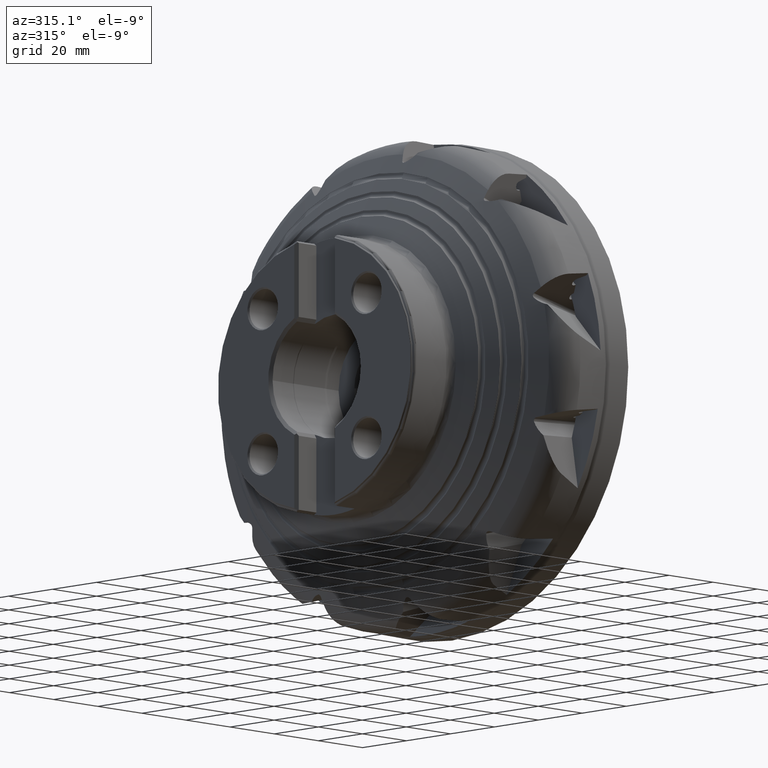
[diagram: clean part render]
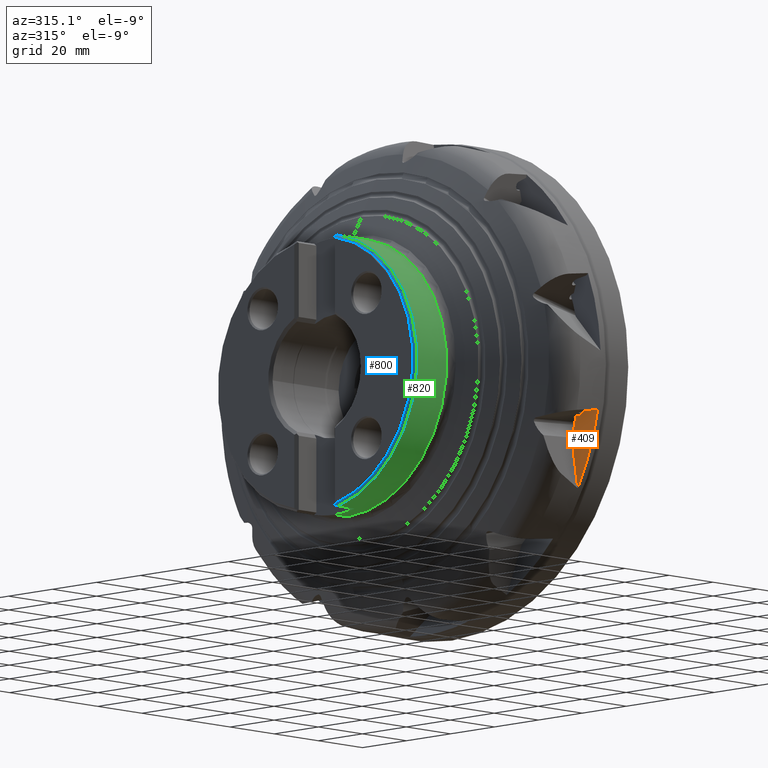
[diagram: same view with three faces highlighted in distinct colors, each labeled with its STEP entity id]
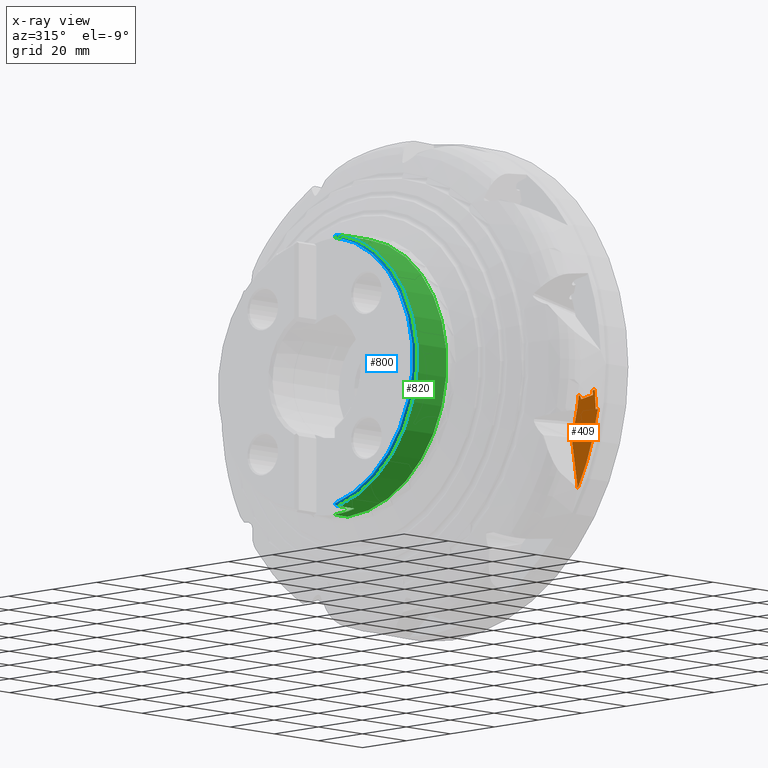
[diagram: x-ray of the same camera — body ghosted, the three highlighted faces saturated]
A machine part, auxiliary view with three faces highlighted in distinct colors.
The next image is the same camera in x-ray (body ghosted, the three faces saturated) — at least one of them is partly hidden behind the body in this view.
Their STEP definitions:

[orange] entity #409 — the highlighted conical surface has half-angle 87.309 deg.
#62 = ORIENTED_EDGE ( 'NONE', *, *, #1198, .T. ) ;
#66 = ORIENTED_EDGE ( 'NONE', *, *, #4740, .F. ) ;
#72 = ORIENTED_EDGE ( 'NONE', *, *, #1352, .T. ) ;
#82 = ORIENTED_EDGE ( 'NONE', *, *, #15761, .F. ) ;
#84 = ORIENTED_EDGE ( 'NONE', *, *, #15683, .F. ) ;
#86 = ORIENTED_EDGE ( 'NONE', *, *, #4731, .T. ) ;
#88 = ORIENTED_EDGE ( 'NONE', *, *, #4752, .T. ) ;
#93 = ORIENTED_EDGE ( 'NONE', *, *, #1336, .T. ) ;
#97 = ORIENTED_EDGE ( 'NONE', *, *, #1355, .T. ) ;
#100 = ORIENTED_EDGE ( 'NONE', *, *, #15829, .T. ) ;
#109 = ORIENTED_EDGE ( 'NONE', *, *, #15822, .T. ) ;
#110 = ORIENTED_EDGE ( 'NONE', *, *, #4735, .T. ) ;
#117 = VERTEX_POINT ( 'NONE', #2426 ) ;
#324 = VERTEX_POINT ( 'NONE', #2462 ) ;
#409 = ADVANCED_FACE ( 'NONE', ( #6663 ), #6666, .F. ) ;
#1198 = EDGE_CURVE ( 'NONE', #1697, #2090, #9706, .T. ) ;
#1336 = EDGE_CURVE ( 'NONE', #8808, #324, #8770, .T. ) ;
#1352 = EDGE_CURVE ( 'NONE', #14942, #1697, #8776, .T. ) ;
#1355 = EDGE_CURVE ( 'NONE', #15006, #1454, #8778, .T. ) ;
#1454 = VERTEX_POINT ( 'NONE', #11874 ) ;
#1697 = VERTEX_POINT ( 'NONE', #12116 ) ;
#1956 = VERTEX_POINT ( 'NONE', #13051 ) ;
#2090 = VERTEX_POINT ( 'NONE', #13185 ) ;
#2426 = CARTESIAN_POINT ( 'NONE',  ( -10.75802831989823900, -69.07125936177112600, -39.51381726916803000 ) ) ;
#2462 = CARTESIAN_POINT ( 'NONE',  ( -10.63052942149523800, -76.41263836694362500, -8.306215895500704600 ) ) ;
#2660 = DIRECTION ( 'NONE',  ( 0.0000000000000000000, 0.0000000000000000000, 1.000000000000000000 ) ) ;
#2661 = DIRECTION ( 'NONE',  ( -1.000000000000000000, 0.0000000000000000000, 0.0000000000000000000 ) ) ;
#2662 = CARTESIAN_POINT ( 'NONE',  ( -10.29289730476655900, 0.0000000000000000000, 0.0000000000000000000 ) ) ;
#4731 = EDGE_CURVE ( 'NONE', #1454, #14916, #12917, .T. ) ;
#4735 = EDGE_CURVE ( 'NONE', #14980, #14942, #12918, .T. ) ;
#4740 = EDGE_CURVE ( 'NONE', #15006, #324, #12919, .T. ) ;
#4752 = EDGE_CURVE ( 'NONE', #14916, #14980, #12920, .T. ) ;
#5245 = EDGE_LOOP ( 'NONE', ( #62, #109, #84, #100, #82, #93, #66, #97, #86, #88, #110, #72 ) ) ;
#5691 = AXIS2_PLACEMENT_3D ( 'NONE', #2662, #2661, #2660 ) ;
#6663 = FACE_OUTER_BOUND ( 'NONE', #5245, .T. ) ;
#6666 = CONICAL_SURFACE ( 'NONE', #5691, 69.68044409463347200, 1.523822126671621400 ) ;
#8770 = B_SPLINE_CURVE_WITH_KNOTS ( 'NONE', 3,
 ( #11366, #11373, #11374, #11375, #11376, #11377 ),
 .UNSPECIFIED., .F., .F.,
 ( 4, 2, 4 ),
 ( 0.0003015363868757472900, 0.0005420305438735409200, 0.0007825247008713345400 ),
 .UNSPECIFIED. ) ;
#8776 = B_SPLINE_CURVE_WITH_KNOTS ( 'NONE', 3,
 ( #11425, #11451, #11452, #11453, #11454, #11455, #11456, #11457, #11458, #11459 ),
 .UNSPECIFIED., .F., .F.,
 ( 4, 2, 2, 2, 4 ),
 ( 0.0002169358693915154500, 0.0003111763129204630600, 0.0004054167564494107300, 0.0005938976435073035600, 0.0009708594176230894500 ),
 .UNSPECIFIED. ) ;
#8778 = B_SPLINE_CURVE_WITH_KNOTS ( 'NONE', 3,
 ( #11460, #11470, #11471, #11472, #11473, #11474 ),
 .UNSPECIFIED., .F., .F.,
 ( 4, 2, 4 ),
 ( 0.0009496811655946274900, 0.001200127943345789300, 0.001450574721096951100 ),
 .UNSPECIFIED. ) ;
#8808 = VERTEX_POINT ( 'NONE', #18592 ) ;
#9044 = AXIS2_PLACEMENT_3D ( 'NONE', #10938, #10939, #10940 ) ;
#9706 = CIRCLE ( 'NONE', #9044, 69.68044409463347200 ) ;
#10938 = CARTESIAN_POINT ( 'NONE',  ( -10.29289730476655900, 0.0000000000000000000, 0.0000000000000000000 ) ) ;
#10939 = DIRECTION ( 'NONE',  ( 1.000000000000000000, -0.0000000000000000000, -0.0000000000000000000 ) ) ;
#10940 = DIRECTION ( 'NONE',  ( 0.0000000000000000000, 0.0000000000000000000, -1.000000000000000000 ) ) ;
#11366 = CARTESIAN_POINT ( 'NONE',  ( -10.64792904497914200, -76.75647342657669000, -8.565313938448541700 ) ) ;
#11373 = CARTESIAN_POINT ( 'NONE',  ( -10.64723735857230800, -76.75059454110778700, -8.485321417554141400 ) ) ;
#11374 = CARTESIAN_POINT ( 'NONE',  ( -10.64483407005646900, -76.70763753019738800, -8.408052233293824800 ) ) ;
#11375 = CARTESIAN_POINT ( 'NONE',  ( -10.63823890161527600, -76.57684963192029700, -8.313256940432186300 ) ) ;
#11376 = CARTESIAN_POINT ( 'NONE',  ( -10.63419251786196200, -76.49220811447168000, -8.295295601523861300 ) ) ;
#11377 = CARTESIAN_POINT ( 'NONE',  ( -10.63052942149523800, -76.41263836694362500, -8.306215895500704600 ) ) ;
#11425 = CARTESIAN_POINT ( 'NONE',  ( -10.32606547270047400, -69.73804692134641000, -9.528711191294856800 ) ) ;
#11451 = CARTESIAN_POINT ( 'NONE',  ( -10.32528452626933600, -69.72522138700726700, -9.499863685735187200 ) ) ;
#11452 = CARTESIAN_POINT ( 'NONE',  ( -10.32415090512788100, -69.70422332950737100, -9.475303824573519100 ) ) ;
#11453 = CARTESIAN_POINT ( 'NONE',  ( -10.32167835903589300, -69.65671188991866800, -9.434267846502130800 ) ) ;
#11454 = CARTESIAN_POINT ( 'NONE',  ( -10.32034183186410400, -69.63027333135217100, -9.417618480867219000 ) ) ;
#11455 = CARTESIAN_POINT ( 'NONE',  ( -10.31615695925746000, -69.54627759593627400, -9.374419007147203300 ) ) ;
#11456 = CARTESIAN_POINT ( 'NONE',  ( -10.31327684635283700, -69.48696251446052900, -9.355795461650167500 ) ) ;
#11457 = CARTESIAN_POINT ( 'NONE',  ( -10.30450887418696500, -69.30423034094255300, -9.315170315971332800 ) ) ;
#11458 = CARTESIAN_POINT ( 'NONE',  ( -10.29864780283493000, -69.17919157171533600, -9.309518984009843100 ) ) ;
#11459 = CARTESIAN_POINT ( 'NONE',  ( -10.29289730476505400, -69.05448825932691600, -9.318902320966945000 ) ) ;
#11460 = CARTESIAN_POINT ( 'NONE',  ( -10.61079614642675200, -75.98391889477861100, -8.365054600071058400 ) ) ;
#11470 = CARTESIAN_POINT ( 'NONE',  ( -10.60694462932632300, -75.90022752119702400, -8.376540741295032800 ) ) ;
#11471 = CARTESIAN_POINT ( 'NONE',  ( -10.60351482643880600, -75.82222440104182200, -8.418322728517754400 ) ) ;
#11472 = CARTESIAN_POINT ( 'NONE',  ( -10.59895248568302900, -75.71045540026203500, -8.544370344488168500 ) ) ;
#11473 = CARTESIAN_POINT ( 'NONE',  ( -10.59790779662370500, -75.67851847831016700, -8.628862146056610200 ) ) ;
#11474 = CARTESIAN_POINT ( 'NONE',  ( -10.59864349608673000, -75.68465328155885200, -8.712420550059365000 ) ) ;
#11874 = CARTESIAN_POINT ( 'NONE',  ( -10.59864349608673000, -75.68465328155885200, -8.712420550059365000 ) ) ;
#12116 = CARTESIAN_POINT ( 'NONE',  ( -10.29289730476505400, -69.05448825932691600, -9.318902320966945000 ) ) ;
#12917 = B_SPLINE_CURVE_WITH_KNOTS ( 'NONE', 3,
 ( #17499, #17503, #17504, #17505 ),
 .UNSPECIFIED., .F., .F.,
 ( 4, 4 ),
 ( 0.001113490693624574400, 0.002329847205042276900 ),
 .UNSPECIFIED. ) ;
#12918 = B_SPLINE_CURVE_WITH_KNOTS ( 'NONE', 3,
 ( #17506, #17513, #17514, #17515 ),
 .UNSPECIFIED., .F., .F.,
 ( 4, 4 ),
 ( 0.0002372482808268562800, 0.001501763816076202000 ),
 .UNSPECIFIED. ) ;
#12919 = B_SPLINE_CURVE_WITH_KNOTS ( 'NONE', 3,
 ( #17509, #17525, #17526, #17527 ),
 .UNSPECIFIED., .F., .F.,
 ( 4, 4 ),
 ( 0.007005674156082834100, 0.007438862082628606300 ),
 .UNSPECIFIED. ) ;
#12920 = B_SPLINE_CURVE_WITH_KNOTS ( 'NONE', 3,
 ( #17550, #17552, #17553, #17554 ),
 .UNSPECIFIED., .F., .F.,
 ( 4, 4 ),
 ( 0.002525848611171542400, 0.008104634272234725500 ),
 .UNSPECIFIED. ) ;
#13051 = CARTESIAN_POINT ( 'NONE',  ( -10.75802831989757500, -78.20583840259821800, -14.69787279665655100 ) ) ;
#13185 = CARTESIAN_POINT ( 'NONE',  ( -10.29289730476655000, -65.88301941712697400, -22.68902910456530400 ) ) ;
#14371 = B_SPLINE_CURVE_WITH_KNOTS ( 'NONE', 3,
 ( #19834, #19851, #19852, #19853 ),
 .UNSPECIFIED., .F., .F.,
 ( 4, 4 ),
 ( 0.0001527847357731330300, 0.006438758239299777200 ),
 .UNSPECIFIED. ) ;
#14399 = B_SPLINE_CURVE_WITH_KNOTS ( 'NONE', 3,
 ( #20092, #20097, #20098, #20099 ),
 .UNSPECIFIED., .F., .F.,
 ( 4, 4 ),
 ( 8.596981840204971200E-006, 0.01713911704369134100 ),
 .UNSPECIFIED. ) ;
#14403 = B_SPLINE_CURVE_WITH_KNOTS ( 'NONE', 3,
 ( #20112, #20132, #20133, #20134 ),
 .UNSPECIFIED., .F., .F.,
 ( 4, 4 ),
 ( 4.489934179081464700E-006, 0.001008673293771071600 ),
 .UNSPECIFIED. ) ;
#14916 = VERTEX_POINT ( 'NONE', #18688 ) ;
#14942 = VERTEX_POINT ( 'NONE', #18714 ) ;
#14980 = VERTEX_POINT ( 'NONE', #18752 ) ;
#15006 = VERTEX_POINT ( 'NONE', #18778 ) ;
#15026 = VERTEX_POINT ( 'NONE', #18798 ) ;
#15683 = EDGE_CURVE ( 'NONE', #1956, #117, #20348, .T. ) ;
#15761 = EDGE_CURVE ( 'NONE', #8808, #15026, #14371, .T. ) ;
#15822 = EDGE_CURVE ( 'NONE', #2090, #117, #14399, .T. ) ;
#15829 = EDGE_CURVE ( 'NONE', #1956, #15026, #14403, .T. ) ;
#17499 = CARTESIAN_POINT ( 'NONE',  ( -10.59864349608673000, -75.68465328155885200, -8.712420550059365000 ) ) ;
#17503 = CARTESIAN_POINT ( 'NONE',  ( -10.60220362588342100, -75.71434026238549100, -9.116768763853016800 ) ) ;
#17504 = CARTESIAN_POINT ( 'NONE',  ( -10.60590749738355500, -75.74396045769673000, -9.521120645924245500 ) ) ;
#17505 = CARTESIAN_POINT ( 'NONE',  ( -10.60975380442045000, -75.77351446018833800, -9.925475980020124200 ) ) ;
#17506 = CARTESIAN_POINT ( 'NONE',  ( -10.35774486101638600, -70.25222065240041000, -10.68353643042854600 ) ) ;
#17509 = CARTESIAN_POINT ( 'NONE',  ( -10.61079614642675200, -75.98391889477861100, -8.365054600071058400 ) ) ;
#17513 = CARTESIAN_POINT ( 'NONE',  ( -10.34705019218552600, -70.08062669864227700, -10.29868872691159100 ) ) ;
#17514 = CARTESIAN_POINT ( 'NONE',  ( -10.33648900696329600, -69.90923330659653300, -9.913747796370918400 ) ) ;
#17515 = CARTESIAN_POINT ( 'NONE',  ( -10.32606547270047400, -69.73804692134641000, -9.528711191294856800 ) ) ;
#17525 = CARTESIAN_POINT ( 'NONE',  ( -10.61737277293770300, -76.12682541495571800, -8.345441533606326300 ) ) ;
#17526 = CARTESIAN_POINT ( 'NONE',  ( -10.62395053748644500, -76.26973190552513400, -8.325828632984025600 ) ) ;
#17527 = CARTESIAN_POINT ( 'NONE',  ( -10.63052942149523800, -76.41263836694362500, -8.306215895500704600 ) ) ;
#17550 = CARTESIAN_POINT ( 'NONE',  ( -10.60975380442045000, -75.77351446018833800, -9.925475980020124200 ) ) ;
#17552 = CARTESIAN_POINT ( 'NONE',  ( -10.52551302664536700, -73.93308930403418300, -10.17812815408543900 ) ) ;
#17553 = CARTESIAN_POINT ( 'NONE',  ( -10.44149206740092800, -72.09265846257108000, -10.43081235673920300 ) ) ;
#17554 = CARTESIAN_POINT ( 'NONE',  ( -10.35774486101638600, -70.25222065240041000, -10.68353643042854600 ) ) ;
#18592 = CARTESIAN_POINT ( 'NONE',  ( -10.64792904497914200, -76.75647342657669000, -8.565313938448541700 ) ) ;
#18688 = CARTESIAN_POINT ( 'NONE',  ( -10.60975380442045000, -75.77351446018833800, -9.925475980020124200 ) ) ;
#18714 = CARTESIAN_POINT ( 'NONE',  ( -10.32606547270047400, -69.73804692134641000, -9.528711191294856800 ) ) ;
#18752 = CARTESIAN_POINT ( 'NONE',  ( -10.35774486101638600, -70.25222065240041000, -10.68353643042854600 ) ) ;
#18778 = CARTESIAN_POINT ( 'NONE',  ( -10.61079614642675200, -75.98391889477861100, -8.365054600071058400 ) ) ;
#18798 = CARTESIAN_POINT ( 'NONE',  ( -10.71332821678767600, -77.21198679853361600, -14.83442029378989300 ) ) ;
#19486 = AXIS2_PLACEMENT_3D ( 'NONE', #19579, #19580, #19581 ) ;
#19579 = CARTESIAN_POINT ( 'NONE',  ( -10.75802831989757300, 0.0000000000000000000, 0.0000000000000000000 ) ) ;
#19580 = DIRECTION ( 'NONE',  ( 1.000000000000000000, -0.0000000000000000000, -0.0000000000000000000 ) ) ;
#19581 = DIRECTION ( 'NONE',  ( 0.0000000000000000000, 0.0000000000000000000, -1.000000000000000000 ) ) ;
#19834 = CARTESIAN_POINT ( 'NONE',  ( -10.64792904497914200, -76.75647342657669000, -8.565313938448541700 ) ) ;
#19851 = CARTESIAN_POINT ( 'NONE',  ( -10.66599771904970800, -76.91004542739291600, -10.65492965711832900 ) ) ;
#19852 = CARTESIAN_POINT ( 'NONE',  ( -10.68786223345540500, -77.06185310311917600, -12.74463327591584000 ) ) ;
#19853 = CARTESIAN_POINT ( 'NONE',  ( -10.71332821678767600, -77.21198679853361600, -14.83442029378989300 ) ) ;
#20092 = CARTESIAN_POINT ( 'NONE',  ( -10.29289730476655000, -65.88301941712697400, -22.68902910456530400 ) ) ;
#20097 = CARTESIAN_POINT ( 'NONE',  ( -10.42575127797481800, -66.94009298246408000, -28.29898028723830400 ) ) ;
#20098 = CARTESIAN_POINT ( 'NONE',  ( -10.58358431388401000, -68.00355276764514700, -33.90703076014506900 ) ) ;
#20099 = CARTESIAN_POINT ( 'NONE',  ( -10.75802831989823900, -69.07125936177112600, -39.51381726916803000 ) ) ;
#20112 = CARTESIAN_POINT ( 'NONE',  ( -10.75802831989757500, -78.20583840259821800, -14.69787279665655100 ) ) ;
#20132 = CARTESIAN_POINT ( 'NONE',  ( -10.74311822225751100, -77.87455478606493400, -14.74338716403183000 ) ) ;
#20133 = CARTESIAN_POINT ( 'NONE',  ( -10.72821806588145900, -77.54327092078051500, -14.78890297869291000 ) ) ;
#20134 = CARTESIAN_POINT ( 'NONE',  ( -10.71332821678767600, -77.21198679853361600, -14.83442029378989300 ) ) ;
#20348 = CIRCLE ( 'NONE', #19486, 79.57500000000000300 ) ;

[blue] entity #800 — the highlighted toroidal blend (fillet) surface has major radius 44 mm and minor (blend) radius 1 mm.
#800 = ADVANCED_FACE ( 'NONE', ( #7376 ), #7381, .T. ) ;
#1485 = VERTEX_POINT ( 'NONE', #11904 ) ;
#1487 = VERTEX_POINT ( 'NONE', #11906 ) ;
#1499 = VERTEX_POINT ( 'NONE', #11918 ) ;
#1503 = VERTEX_POINT ( 'NONE', #11922 ) ;
#1515 = VERTEX_POINT ( 'NONE', #11934 ) ;
#1516 = VERTEX_POINT ( 'NONE', #11935 ) ;
#4254 = EDGE_CURVE ( 'NONE', #1503, #1516, #12741, .T. ) ;
#4260 = EDGE_CURVE ( 'NONE', #1485, #1499, #12743, .T. ) ;
#4261 = EDGE_CURVE ( 'NONE', #1503, #1487, #12744, .T. ) ;
#4281 = EDGE_CURVE ( 'NONE', #1515, #1499, #12764, .T. ) ;
#4282 = EDGE_CURVE ( 'NONE', #1485, #1487, #12404, .T. ) ;
#4283 = EDGE_CURVE ( 'NONE', #1515, #1516, #12405, .T. ) ;
#5354 = ORIENTED_EDGE ( 'NONE', *, *, #4282, .F. ) ;
#5355 = ORIENTED_EDGE ( 'NONE', *, *, #4260, .T. ) ;
#5356 = ORIENTED_EDGE ( 'NONE', *, *, #4281, .F. ) ;
#5357 = ORIENTED_EDGE ( 'NONE', *, *, #4283, .T. ) ;
#5358 = ORIENTED_EDGE ( 'NONE', *, *, #4254, .F. ) ;
#5359 = ORIENTED_EDGE ( 'NONE', *, *, #4261, .T. ) ;
#7376 = FACE_OUTER_BOUND ( 'NONE', #16038, .T. ) ;
#7381 = TOROIDAL_SURFACE ( 'NONE', #8836, 43.99999999999998600, 1.000000000000004400 ) ;
#8578 = DIRECTION ( 'NONE',  ( 1.000000000000000000, -0.0000000000000000000, -0.0000000000000000000 ) ) ;
#8579 = CARTESIAN_POINT ( 'NONE',  ( -59.75000000000001400, 0.0000000000000000000, 0.0000000000000000000 ) ) ;
#8581 = DIRECTION ( 'NONE',  ( 0.0000000000000000000, 0.0000000000000000000, -1.000000000000000000 ) ) ;
#8836 = AXIS2_PLACEMENT_3D ( 'NONE', #8579, #8578, #8581 ) ;
#9144 = AXIS2_PLACEMENT_3D ( 'NONE', #13472, #13483, #13484 ) ;
#9145 = AXIS2_PLACEMENT_3D ( 'NONE', #13476, #13480, #13481 ) ;
#11904 = CARTESIAN_POINT ( 'NONE',  ( -59.75000000000001400, -9.170586121755638600, 44.05565060447368400 ) ) ;
#11906 = CARTESIAN_POINT ( 'NONE',  ( -59.75000000000001400, -9.170586121755633300, -44.05565060447368400 ) ) ;
#11918 = CARTESIAN_POINT ( 'NONE',  ( -60.62628637090364200, -8.576286370903625700, 43.64718786304215600 ) ) ;
#11922 = CARTESIAN_POINT ( 'NONE',  ( -60.62628637090364200, -8.576286370903625700, -43.64718786304216300 ) ) ;
#11934 = CARTESIAN_POINT ( 'NONE',  ( -60.72900000000000600, -8.678999999999986100, 43.34346801618168900 ) ) ;
#11935 = CARTESIAN_POINT ( 'NONE',  ( -60.72900000000000600, -8.678999999999986100, -43.34346801618168900 ) ) ;
#12404 = CIRCLE ( 'NONE', #9145, 44.99999999999999300 ) ;
#12405 = CIRCLE ( 'NONE', #9144, 44.20386024624732400 ) ;
#12741 = B_SPLINE_CURVE_WITH_KNOTS ( 'NONE', 3,
 ( #13362, #13367, #13368, #13369 ),
 .UNSPECIFIED., .F., .F.,
 ( 4, 4 ),
 ( 0.0007089213754981982300, 0.001043754520033241800 ),
 .UNSPECIFIED. ) ;
#12743 = B_SPLINE_CURVE_WITH_KNOTS ( 'NONE', 3,
 ( #13382, #13386, #13387, #13388, #13389, #13390 ),
 .UNSPECIFIED., .F., .F.,
 ( 4, 2, 4 ),
 ( 0.0000000000000000000, 0.0005991824275628132500, 0.001198364855125626500 ),
 .UNSPECIFIED. ) ;
#12744 = B_SPLINE_CURVE_WITH_KNOTS ( 'NONE', 3,
 ( #13370, #13392, #13393, #13394, #13395, #13396, #13397, #13398 ),
 .UNSPECIFIED., .F., .F.,
 ( 4, 2, 2, 4 ),
 ( 0.0000000000000000000, 0.0002984446912743178200, 0.0005968893825486356400, 0.001193778765097250900 ),
 .UNSPECIFIED. ) ;
#12764 = B_SPLINE_CURVE_WITH_KNOTS ( 'NONE', 3,
 ( #13468, #13477, #13478, #13479 ),
 .UNSPECIFIED., .F., .F.,
 ( 4, 4 ),
 ( 1.041411319688869400E-006, 0.0003376796849085577300 ),
 .UNSPECIFIED. ) ;
#13362 = CARTESIAN_POINT ( 'NONE',  ( -60.62628637090364200, -8.576286370903625700, -43.64718786304216300 ) ) ;
#13367 = CARTESIAN_POINT ( 'NONE',  ( -60.67120764613733300, -8.621207646137319700, -43.55509559603947200 ) ) ;
#13368 = CARTESIAN_POINT ( 'NONE',  ( -60.70756039933768700, -8.657560399337674200, -43.45276443850500700 ) ) ;
#13369 = CARTESIAN_POINT ( 'NONE',  ( -60.72900000000000600, -8.678999999999986100, -43.34346801618168900 ) ) ;
#13370 = CARTESIAN_POINT ( 'NONE',  ( -60.62628637090364200, -8.576286370903625700, -43.64718786304216300 ) ) ;
#13382 = CARTESIAN_POINT ( 'NONE',  ( -59.75000000000001400, -9.170586121755638600, 44.05565060447368400 ) ) ;
#13386 = CARTESIAN_POINT ( 'NONE',  ( -59.95317343704850500, -9.170586121755635000, 44.05565060447368400 ) ) ;
#13387 = CARTESIAN_POINT ( 'NONE',  ( -60.14621132977282500, -9.096745948872436900, 44.00490018871058600 ) ) ;
#13388 = CARTESIAN_POINT ( 'NONE',  ( -60.44426874741295600, -8.874872597005818900, 43.85240643884088700 ) ) ;
#13389 = CARTESIAN_POINT ( 'NONE',  ( -60.55244004992975700, -8.731165356559603900, 43.75363632609549600 ) ) ;
#13390 = CARTESIAN_POINT ( 'NONE',  ( -60.62628637090364200, -8.576286370903625700, 43.64718786304215600 ) ) ;
#13392 = CARTESIAN_POINT ( 'NONE',  ( -60.58932967858031300, -8.653796190550002300, -43.70046043025296000 ) ) ;
#13393 = CARTESIAN_POINT ( 'NONE',  ( -60.54433064521211300, -8.727233846006846800, -43.75093419543491500 ) ) ;
#13394 = CARTESIAN_POINT ( 'NONE',  ( -60.43558608498955900, -8.864617045229723000, -43.84535778908570300 ) ) ;
#13395 = CARTESIAN_POINT ( 'NONE',  ( -60.37065711703066700, -8.929543678886894000, -43.88998192149953300 ) ) ;
#13396 = CARTESIAN_POINT ( 'NONE',  ( -60.14696950763738000, -9.096429962436728200, -44.00468301095539700 ) ) ;
#13397 = CARTESIAN_POINT ( 'NONE',  ( -59.95392834671768900, -9.170586121755631500, -44.05565060447366200 ) ) ;
#13398 = CARTESIAN_POINT ( 'NONE',  ( -59.75000000000001400, -9.170586121755633300, -44.05565060447368400 ) ) ;
#13468 = CARTESIAN_POINT ( 'NONE',  ( -60.72900000000000600, -8.678999999999986100, 43.34346801618168900 ) ) ;
#13472 = CARTESIAN_POINT ( 'NONE',  ( -60.72900000000000600, 0.0000000000000000000, 0.0000000000000000000 ) ) ;
#13476 = CARTESIAN_POINT ( 'NONE',  ( -59.75000000000001400, 0.0000000000000000000, 0.0000000000000000000 ) ) ;
#13477 = CARTESIAN_POINT ( 'NONE',  ( -60.70740487923371400, -8.657404879233697100, 43.45355726068635200 ) ) ;
#13478 = CARTESIAN_POINT ( 'NONE',  ( -60.67181485304538300, -8.621814853045368200, 43.55385077250291200 ) ) ;
#13479 = CARTESIAN_POINT ( 'NONE',  ( -60.62628637090364200, -8.576286370903625700, 43.64718786304215600 ) ) ;
#13480 = DIRECTION ( 'NONE',  ( 1.000000000000000000, -0.0000000000000000000, -0.0000000000000000000 ) ) ;
#13481 = DIRECTION ( 'NONE',  ( 0.0000000000000000000, 0.0000000000000000000, -1.000000000000000000 ) ) ;
#13483 = DIRECTION ( 'NONE',  ( 1.000000000000000000, -0.0000000000000000000, -0.0000000000000000000 ) ) ;
#13484 = DIRECTION ( 'NONE',  ( 0.0000000000000000000, 0.0000000000000000000, -1.000000000000000000 ) ) ;
#16038 = EDGE_LOOP ( 'NONE', ( #5354, #5355, #5356, #5357, #5358, #5359 ) ) ;

[green] entity #820 — the highlighted cylindrical surface (partial cylindrical patch) has radius 45 mm, axis along (1, -0, -0).
#129 = VERTEX_POINT ( 'NONE', #2438 ) ;
#820 = ADVANCED_FACE ( 'NONE', ( #7418 ), #7417, .T. ) ;
#863 = EDGE_CURVE ( 'NONE', #1651, #1893, #9319, .T. ) ;
#869 = EDGE_CURVE ( 'NONE', #1738, #1893, #9337, .T. ) ;
#878 = EDGE_CURVE ( 'NONE', #1982, #1738, #9346, .T. ) ;
#1485 = VERTEX_POINT ( 'NONE', #11904 ) ;
#1487 = VERTEX_POINT ( 'NONE', #11906 ) ;
#1651 = VERTEX_POINT ( 'NONE', #12070 ) ;
#1738 = VERTEX_POINT ( 'NONE', #12157 ) ;
#1893 = VERTEX_POINT ( 'NONE', #12988 ) ;
#1982 = VERTEX_POINT ( 'NONE', #13077 ) ;
#2163 = VERTEX_POINT ( 'NONE', #13258 ) ;
#2438 = CARTESIAN_POINT ( 'NONE',  ( -52.25000000000001400, -9.170586121755633300, -44.05565060447367600 ) ) ;
#4282 = EDGE_CURVE ( 'NONE', #1485, #1487, #12404, .T. ) ;
#4297 = EDGE_CURVE ( 'NONE', #1487, #129, #12415, .T. ) ;
#4310 = EDGE_CURVE ( 'NONE', #2163, #1982, #12425, .T. ) ;
#4311 = EDGE_CURVE ( 'NONE', #2163, #1485, #12416, .T. ) ;
#4314 = EDGE_CURVE ( 'NONE', #1651, #129, #12426, .T. ) ;
#5467 = ORIENTED_EDGE ( 'NONE', *, *, #878, .F. ) ;
#5468 = ORIENTED_EDGE ( 'NONE', *, *, #4310, .F. ) ;
#5469 = ORIENTED_EDGE ( 'NONE', *, *, #4311, .T. ) ;
#5470 = ORIENTED_EDGE ( 'NONE', *, *, #4282, .T. ) ;
#5471 = ORIENTED_EDGE ( 'NONE', *, *, #4297, .T. ) ;
#5472 = ORIENTED_EDGE ( 'NONE', *, *, #4314, .F. ) ;
#5473 = ORIENTED_EDGE ( 'NONE', *, *, #863, .T. ) ;
#5474 = ORIENTED_EDGE ( 'NONE', *, *, #869, .F. ) ;
#7417 = CYLINDRICAL_SURFACE ( 'NONE', #8862, 44.99999999999998600 ) ;
#7418 = FACE_OUTER_BOUND ( 'NONE', #16034, .T. ) ;
#8629 = DIRECTION ( 'NONE',  ( 0.0000000000000000000, 0.0000000000000000000, -1.000000000000000000 ) ) ;
#8640 = DIRECTION ( 'NONE',  ( 1.000000000000000000, -0.0000000000000000000, -0.0000000000000000000 ) ) ;
#8641 = CARTESIAN_POINT ( 'NONE',  ( 0.0000000000000000000, 0.0000000000000000000, 0.0000000000000000000 ) ) ;
#8862 = AXIS2_PLACEMENT_3D ( 'NONE', #8641, #8640, #8629 ) ;
#8909 = AXIS2_PLACEMENT_3D ( 'NONE', #9893, #9903, #9904 ) ;
#9145 = AXIS2_PLACEMENT_3D ( 'NONE', #13476, #13480, #13481 ) ;
#9158 = AXIS2_PLACEMENT_3D ( 'NONE', #13569, #13614, #13615 ) ;
#9159 = AXIS2_PLACEMENT_3D ( 'NONE', #13626, #13627, #13628 ) ;
#9319 = LINE ( 'NONE', #9879, #9327 ) ;
#9327 = VECTOR ( 'NONE', #9886, 1000.000000000000000 ) ;
#9336 = VECTOR ( 'NONE', #9928, 1000.000000000000000 ) ;
#9337 = CIRCLE ( 'NONE', #8909, 44.99999999999998600 ) ;
#9346 = LINE ( 'NONE', #9916, #9336 ) ;
#9879 = CARTESIAN_POINT ( 'NONE',  ( 0.0000000000000000000, 0.0000000000000000000, -44.99999999999998600 ) ) ;
#9886 = DIRECTION ( 'NONE',  ( 1.000000000000000000, -0.0000000000000000000, -0.0000000000000000000 ) ) ;
#9893 = CARTESIAN_POINT ( 'NONE',  ( -46.25000000000000000, 0.0000000000000000000, 0.0000000000000000000 ) ) ;
#9903 = DIRECTION ( 'NONE',  ( 1.000000000000000000, -0.0000000000000000000, -0.0000000000000000000 ) ) ;
#9904 = DIRECTION ( 'NONE',  ( 0.0000000000000000000, 0.0000000000000000000, -1.000000000000000000 ) ) ;
#9916 = CARTESIAN_POINT ( 'NONE',  ( 0.0000000000000000000, 5.510910596163087200E-015, 44.99999999999998600 ) ) ;
#9928 = DIRECTION ( 'NONE',  ( 1.000000000000000000, -0.0000000000000000000, -0.0000000000000000000 ) ) ;
#11904 = CARTESIAN_POINT ( 'NONE',  ( -59.75000000000001400, -9.170586121755638600, 44.05565060447368400 ) ) ;
#11906 = CARTESIAN_POINT ( 'NONE',  ( -59.75000000000001400, -9.170586121755633300, -44.05565060447368400 ) ) ;
#12070 = CARTESIAN_POINT ( 'NONE',  ( -52.25000000000001400, 0.0000000000000000000, -44.99999999999998600 ) ) ;
#12157 = CARTESIAN_POINT ( 'NONE',  ( -46.25000000000000000, 5.608116404033093100E-015, 44.99999999999998600 ) ) ;
#12404 = CIRCLE ( 'NONE', #9145, 44.99999999999999300 ) ;
#12410 = VECTOR ( 'NONE', #13539, 1000.000000000000000 ) ;
#12415 = LINE ( 'NONE', #13529, #12410 ) ;
#12416 = LINE ( 'NONE', #13616, #12423 ) ;
#12423 = VECTOR ( 'NONE', #13617, 1000.000000000000000 ) ;
#12425 = CIRCLE ( 'NONE', #9158, 44.99999999999998600 ) ;
#12426 = CIRCLE ( 'NONE', #9159, 44.99999999999998600 ) ;
#12988 = CARTESIAN_POINT ( 'NONE',  ( -46.25000000000000000, 0.0000000000000000000, -44.99999999999998600 ) ) ;
#13077 = CARTESIAN_POINT ( 'NONE',  ( -52.25000000000001400, 5.510910596163087200E-015, 44.99999999999998600 ) ) ;
#13258 = CARTESIAN_POINT ( 'NONE',  ( -52.25000000000001400, -9.170586121755635000, 44.05565060447367600 ) ) ;
#13476 = CARTESIAN_POINT ( 'NONE',  ( -59.75000000000001400, 0.0000000000000000000, 0.0000000000000000000 ) ) ;
#13480 = DIRECTION ( 'NONE',  ( 1.000000000000000000, -0.0000000000000000000, -0.0000000000000000000 ) ) ;
#13481 = DIRECTION ( 'NONE',  ( 0.0000000000000000000, 0.0000000000000000000, -1.000000000000000000 ) ) ;
#13529 = CARTESIAN_POINT ( 'NONE',  ( -2.305327705244065000E-030, -9.170586121755643900, -44.05565060447366900 ) ) ;
#13539 = DIRECTION ( 'NONE',  ( 1.000000000000000000, -0.0000000000000000000, -0.0000000000000000000 ) ) ;
#13569 = CARTESIAN_POINT ( 'NONE',  ( -52.25000000000001400, 0.0000000000000000000, 0.0000000000000000000 ) ) ;
#13614 = DIRECTION ( 'NONE',  ( -1.000000000000000000, -0.0000000000000000000, -0.0000000000000000000 ) ) ;
#13615 = DIRECTION ( 'NONE',  ( 0.0000000000000000000, 7.105427357601001900E-015, -1.000000000000000000 ) ) ;
#13616 = CARTESIAN_POINT ( 'NONE',  ( -2.689548989451409300E-030, -9.170586121755645700, 44.05565060447366900 ) ) ;
#13617 = DIRECTION ( 'NONE',  ( -1.000000000000000000, 0.0000000000000000000, 0.0000000000000000000 ) ) ;
#13626 = CARTESIAN_POINT ( 'NONE',  ( -52.25000000000001400, 0.0000000000000000000, 0.0000000000000000000 ) ) ;
#13627 = DIRECTION ( 'NONE',  ( -1.000000000000000000, -0.0000000000000000000, -0.0000000000000000000 ) ) ;
#13628 = DIRECTION ( 'NONE',  ( 0.0000000000000000000, 0.0000000000000000000, -1.000000000000000000 ) ) ;
#16034 = EDGE_LOOP ( 'NONE', ( #5467, #5468, #5469, #5470, #5471, #5472, #5473, #5474 ) ) ;